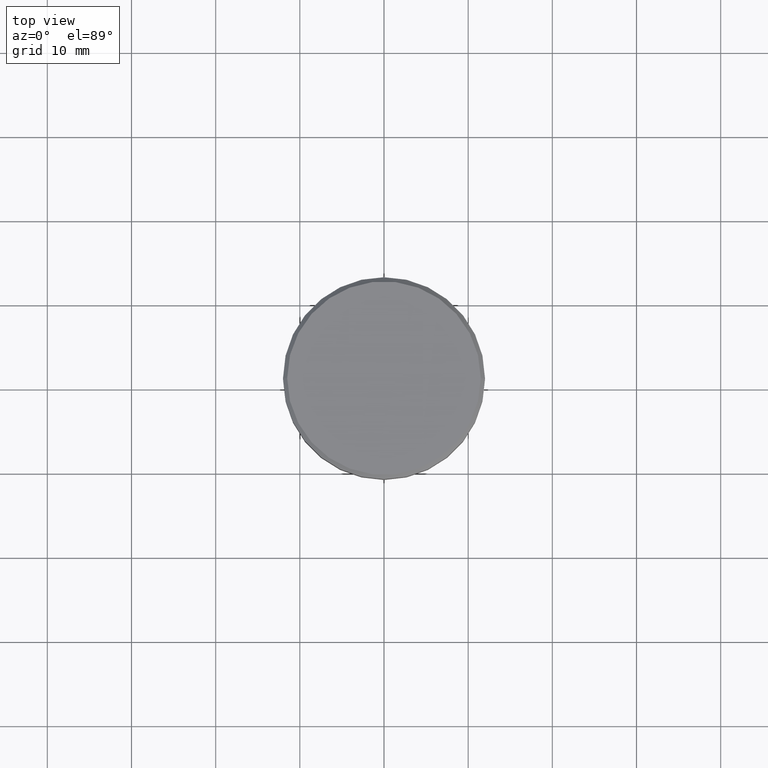
[diagram: clean part render]
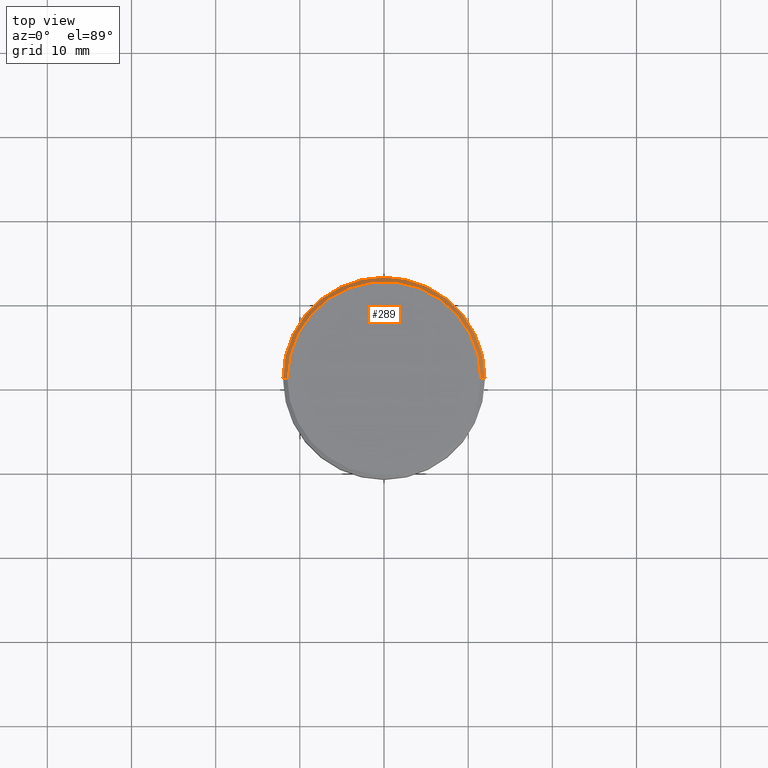
[diagram: same view with one face highlighted and labeled with its STEP entity id]
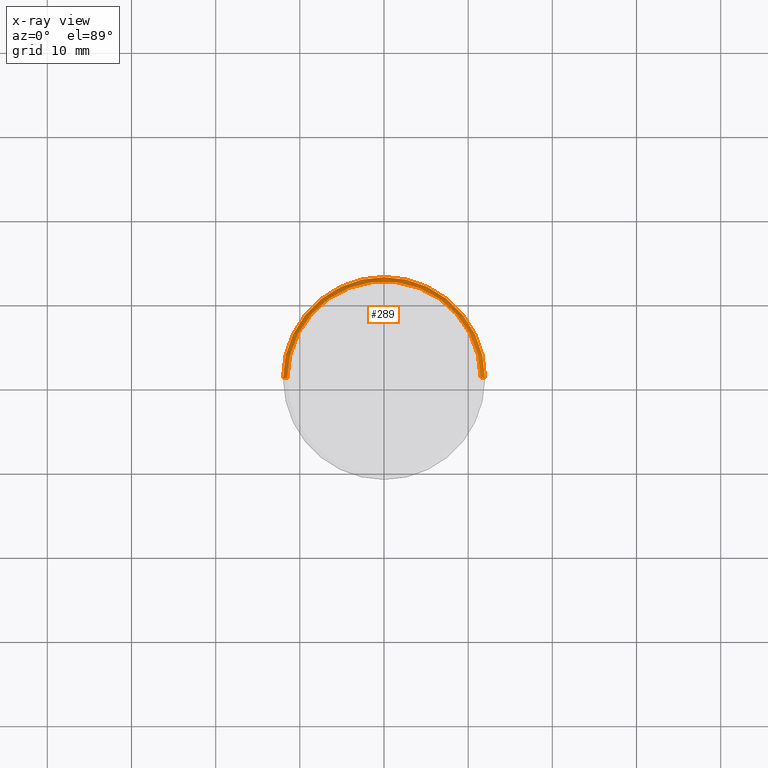
[diagram: x-ray of the same camera — body ghosted, the highlighted face saturated]
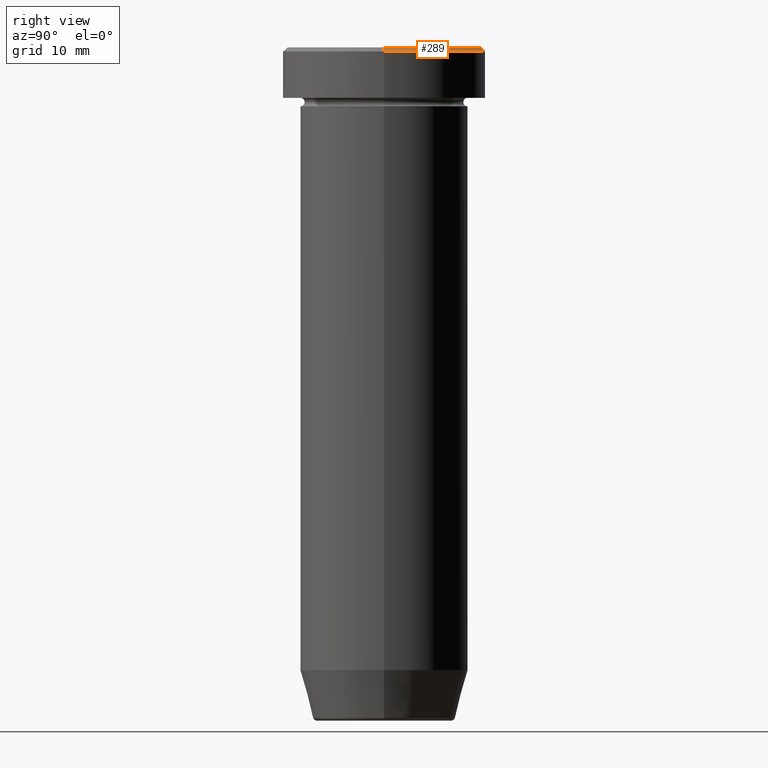
[diagram: same view with one face highlighted and labeled with its STEP entity id]
A machine part, top view. The second image highlights one B-rep face of the part: STEP entity #289.
The next image is the same camera in x-ray: the body ghosted, the highlighted face saturated — about 0% of this face is hidden behind the body in this view.
A second angle (right view) of the same face is appended — the face is thin or edge-on in the first view.
In plain terms, the highlighted conical surface has half-angle 45 deg.
Its self-contained STEP definition (entity closure, byte-faithful):
#34 = DIRECTION ( 'NONE',  ( 0.000000000000000000, 0.000000000000000000, -1.000000000000000000 ) ) ;
#55 = CONICAL_SURFACE ( 'NONE', #181, 11.49999999999999822, 0.7853981633974447263 ) ;
#63 = ORIENTED_EDGE ( 'NONE', *, *, #68, .F. ) ;
#68 = EDGE_CURVE ( 'NONE', #492, #126, #559, .T. ) ;
#88 = CARTESIAN_POINT ( 'NONE',  ( 0.000000000000000000, 0.000000000000000000, -0.5000000000000056621 ) ) ;
#126 = VERTEX_POINT ( 'NONE', #562 ) ;
#150 = ORIENTED_EDGE ( 'NONE', *, *, #329, .F. ) ;
#174 = DIRECTION ( 'NONE',  ( -0.000000000000000000, -0.000000000000000000, 1.000000000000000000 ) ) ;
#176 = CARTESIAN_POINT ( 'NONE',  ( 0.000000000000000000, 0.000000000000000000, 0.000000000000000000 ) ) ;
#181 = AXIS2_PLACEMENT_3D ( 'NONE', #469, #466, #242 ) ;
#200 = AXIS2_PLACEMENT_3D ( 'NONE', #88, #34, #401 ) ;
#231 = DIRECTION ( 'NONE',  ( -0.7071067811865451302, 0.000000000000000000, -0.7071067811865500152 ) ) ;
#242 = DIRECTION ( 'NONE',  ( -1.000000000000000000, 0.000000000000000000, 0.000000000000000000 ) ) ;
#246 = VERTEX_POINT ( 'NONE', #522 ) ;
#287 = AXIS2_PLACEMENT_3D ( 'NONE', #176, #174, #504 ) ;
#289 = ADVANCED_FACE ( 'NONE', ( #328 ), #55, .T. ) ;
#310 = ORIENTED_EDGE ( 'NONE', *, *, #347, .T. ) ;
#321 = CARTESIAN_POINT ( 'NONE',  ( -11.49999999999999822, 0.000000000000000000, 0.000000000000000000 ) ) ;
#328 = FACE_OUTER_BOUND ( 'NONE', #441, .T. ) ;
#329 = EDGE_CURVE ( 'NONE', #434, #492, #458, .T. ) ;
#347 = EDGE_CURVE ( 'NONE', #246, #126, #545, .T. ) ;
#362 = DIRECTION ( 'NONE',  ( 0.7071067811865451302, 8.659560562354903276E-17, -0.7071067811865500152 ) ) ;
#401 = DIRECTION ( 'NONE',  ( 1.000000000000000000, 0.000000000000000000, 0.000000000000000000 ) ) ;
#406 = CARTESIAN_POINT ( 'NONE',  ( -12.00000000000000000, 1.469576158976823947E-15, -0.5000000000000056621 ) ) ;
#420 = CARTESIAN_POINT ( 'NONE',  ( -11.49999999999999822, 0.000000000000000000, 0.000000000000000000 ) ) ;
#421 = CIRCLE ( 'NONE', #287, 11.49999999999999822 ) ;
#434 = VERTEX_POINT ( 'NONE', #321 ) ;
#441 = EDGE_LOOP ( 'NONE', ( #595, #310, #63, #150 ) ) ;
#456 = CARTESIAN_POINT ( 'NONE',  ( 11.49999999999999822, 1.408343819019455979E-15, 0.000000000000000000 ) ) ;
#458 = LINE ( 'NONE', #420, #597 ) ;
#466 = DIRECTION ( 'NONE',  ( 0.000000000000000000, 0.000000000000000000, -1.000000000000000000 ) ) ;
#469 = CARTESIAN_POINT ( 'NONE',  ( 0.000000000000000000, 0.000000000000000000, 0.000000000000000000 ) ) ;
#492 = VERTEX_POINT ( 'NONE', #406 ) ;
#504 = DIRECTION ( 'NONE',  ( 1.000000000000000000, 0.000000000000000000, 0.000000000000000000 ) ) ;
#515 = EDGE_CURVE ( 'NONE', #246, #434, #421, .T. ) ;
#516 = VECTOR ( 'NONE', #362, 1000.000000000000114 ) ;
#522 = CARTESIAN_POINT ( 'NONE',  ( 11.49999999999999822, 1.438959988998139963E-15, 0.000000000000000000 ) ) ;
#545 = LINE ( 'NONE', #456, #516 ) ;
#559 = CIRCLE ( 'NONE', #200, 12.00000000000000000 ) ;
#562 = CARTESIAN_POINT ( 'NONE',  ( 12.00000000000000000, 0.000000000000000000, -0.5000000000000056621 ) ) ;
#595 = ORIENTED_EDGE ( 'NONE', *, *, #515, .F. ) ;
#597 = VECTOR ( 'NONE', #231, 1000.000000000000114 ) ;